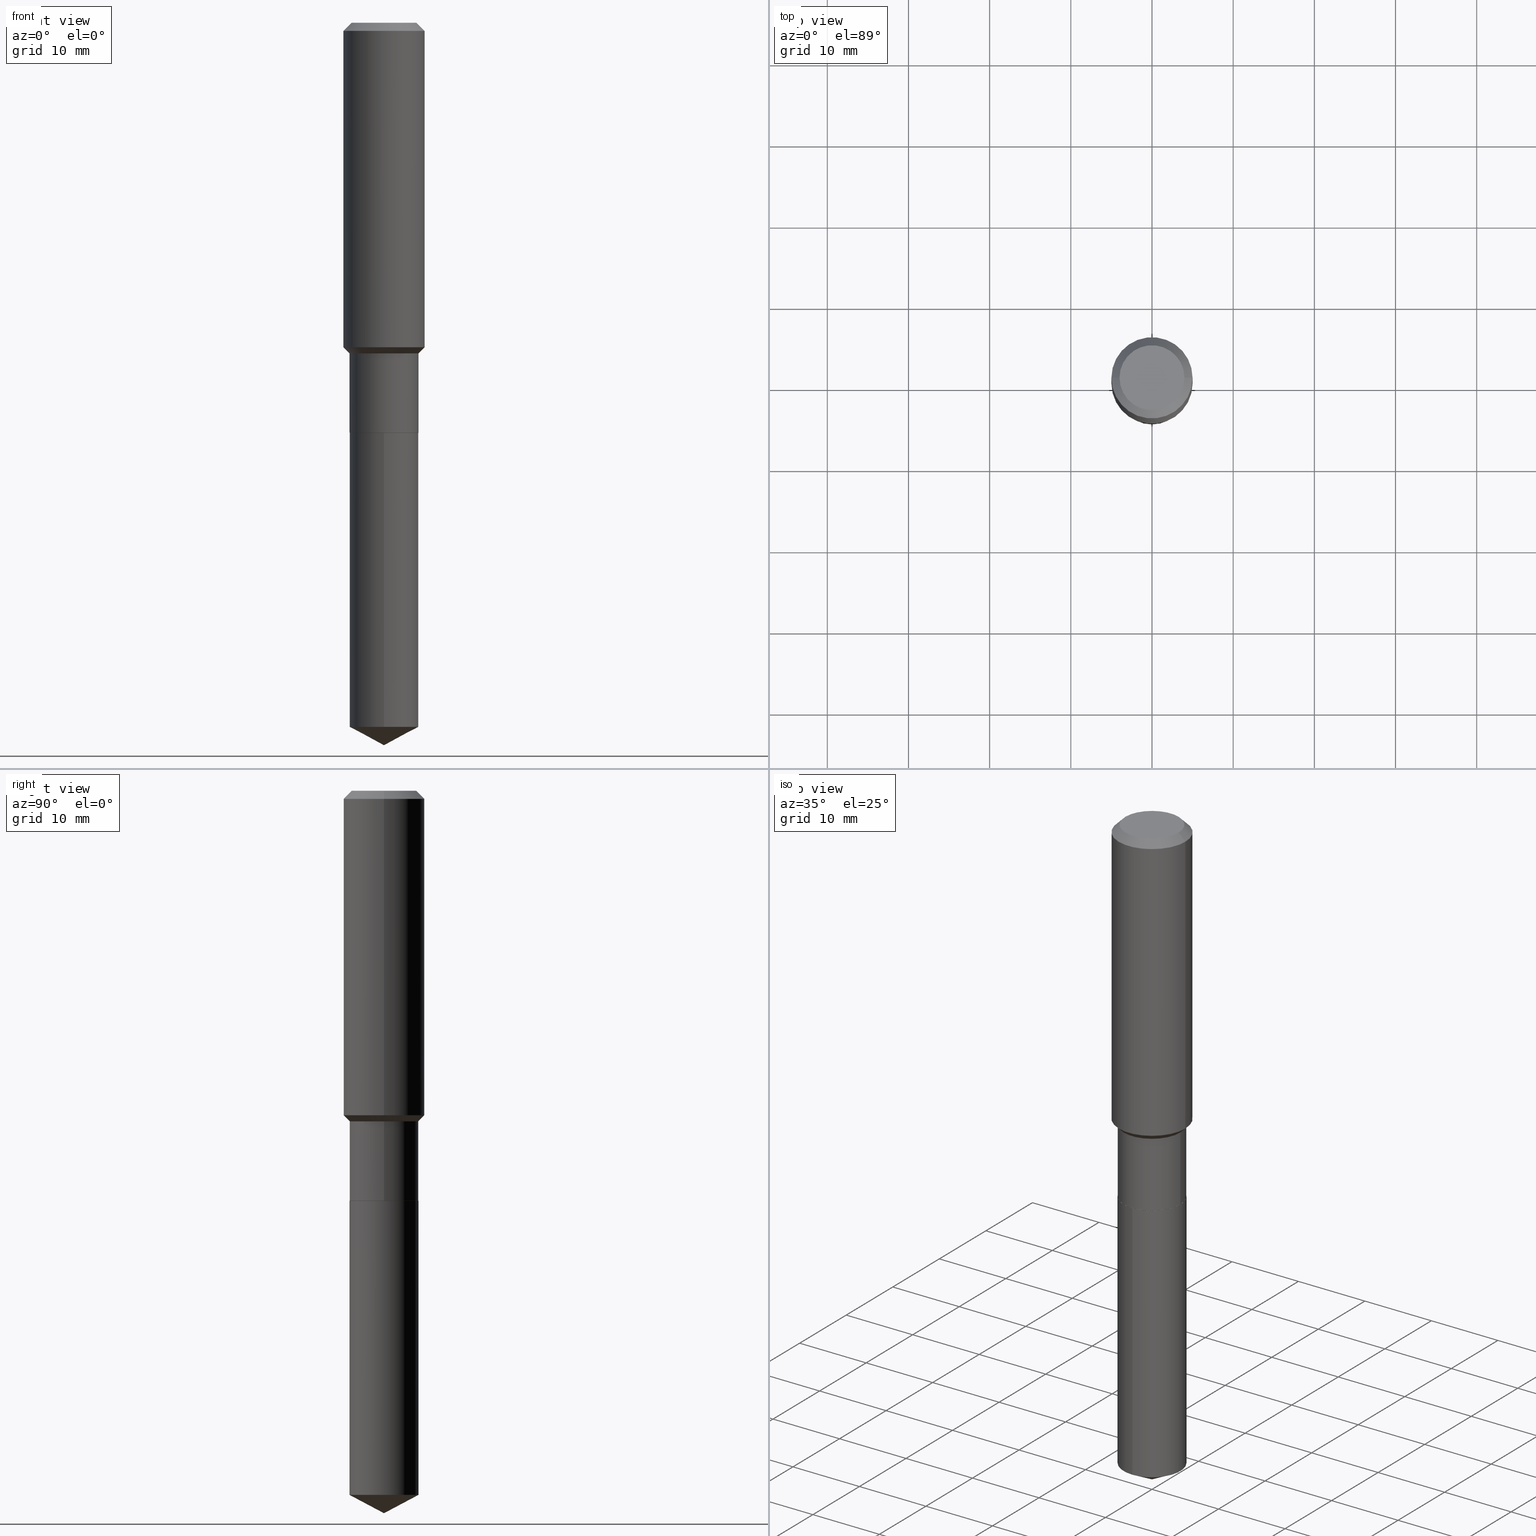
[diagram: canonical four-view strip — front | top / right | iso, engineering-drawing reading convention]
A machine part, canonical four-view strip (front | top / right | iso — engineering-drawing reading convention). The complete STEP part file that produces these views, byte-faithful:
ISO-10303-21;
HEADER;
FILE_DESCRIPTION (( 'STEP AP203' ),
    '1' );
FILE_NAME ('67655.STEP',
    '2024-04-25T08:28:06',
    ( '' ),
    ( '' ),
    'SwSTEP 2.0',
    'SolidWorks 2023',
    '' );
FILE_SCHEMA (( 'CONFIG_CONTROL_DESIGN' ));
ENDSEC;

DATA;
#1 = CARTESIAN_POINT ( 'NONE',  ( 3.920820136956629027E-29, -5.597892030567214225E-15, -1.603299999999999725 ) ) ;
#2 = CARTESIAN_POINT ( 'NONE',  ( -0.1673000000000000043, 1.188737996926647641E-15, -8.229378405996457551E-30 ) ) ;
#3 = VECTOR ( 'NONE', #41, 39.37007874015748143 ) ;
#4 = CIRCLE ( 'NONE', #347, 0.1668000000000000038 ) ;
#5 = ADVANCED_FACE ( 'NONE', ( #128 ), #356, .F. ) ;
#6 = DIRECTION ( 'NONE',  ( -2.445468806185136877E-29, 3.491481338843145188E-15, 1.000000000000000000 ) ) ;
#7 = ORIENTED_EDGE ( 'NONE', *, *, #362, .F. ) ;
#8 = FACE_OUTER_BOUND ( 'NONE', #237, .T. ) ;
#9 = FACE_OUTER_BOUND ( 'NONE', #263, .T. ) ;
#10 = CARTESIAN_POINT ( 'NONE',  ( -0.1672999999999999765, -5.080042172899276832E-15, -1.603299999999999725 ) ) ;
#11 = ORIENTED_EDGE ( 'NONE', *, *, #72, .F. ) ;
#12 = CARTESIAN_POINT ( 'NONE',  ( 0.000000000000000000, 0.000000000000000000, 0.000000000000000000 ) ) ;
#13 = DIRECTION ( 'NONE',  ( -0.7071067811864267805, 7.493145998869918709E-15, 0.7071067811866682540 ) ) ;
#14 = ORIENTED_EDGE ( 'NONE', *, *, #283, .F. ) ;
#15 = DIRECTION ( 'NONE',  ( 0.7071067811864267805, -2.468850131080992517E-15, 0.7071067811866682540 ) ) ;
#16 = ADVANCED_FACE ( 'NONE', ( #414 ), #76, .T. ) ;
#17 = DIRECTION ( 'NONE',  ( -2.445468806185136597E-29, 3.491481338843145583E-15, 1.000000000000000000 ) ) ;
#18 = CONICAL_SURFACE ( 'NONE', #463, 74.04434902938348273, 1.082104136236486269 ) ;
#19 = PERSON_AND_ORGANIZATION ( #438, #258 ) ;
#20 = CONICAL_SURFACE ( 'NONE', #332, 74.04434902938348273, 1.082104136236486269 ) ;
#21 = PRODUCT_DEFINITION_FORMATION_WITH_SPECIFIED_SOURCE ( 'ANY', '', #469, .NOT_KNOWN. ) ;
#22 = CARTESIAN_POINT ( 'NONE',  ( 1.188737996926731261E-15, 0.1672999999999881249, -3.414945012083035358 ) ) ;
#23 = PERSON_AND_ORGANIZATION ( #438, #258 ) ;
#24 =( LENGTH_UNIT ( ) NAMED_UNIT ( * ) SI_UNIT ( $, .METRE. ) );
#25 = PRODUCT_DEFINITION_SHAPE ( 'NONE', 'NONE',  #112 ) ;
#26 = APPROVAL ( #330, 'UNSPECIFIED' ) ;
#27 = VECTOR ( 'NONE', #440, 39.37007874015748854 ) ;
#28 = VECTOR ( 'NONE', #6, 39.37007874015748143 ) ;
#29 = CARTESIAN_POINT ( 'NONE',  ( -0.1673000000000000043, -5.080042172899276832E-15, -1.987599999999999811 ) ) ;
#30 = APPROVAL_ROLE ( '' ) ;
#31 = CONICAL_SURFACE ( 'NONE', #148, 0.1968500000000000250, 0.7853981633974449483 ) ;
#32 = ADVANCED_FACE ( 'NONE', ( #9 ), #422, .T. ) ;
#33 = CC_DESIGN_PERSON_AND_ORGANIZATION_ASSIGNMENT ( #67, #214, ( #21 ) ) ;
#34 = ORIENTED_EDGE ( 'NONE', *, *, #362, .T. ) ;
#35 = LOCAL_TIME ( 4, 28, 6.000000000000000000, #293 ) ;
#36 = PLANE ( 'NONE',  #261 ) ;
#37 = ORIENTED_EDGE ( 'NONE', *, *, #471, .F. ) ;
#38 = CARTESIAN_POINT ( 'NONE',  ( 0.1968500000000001082, -1.374596203102542397E-15, 9.598753983154305062E-30 ) ) ;
#39 = VERTEX_POINT ( 'NONE', #466 ) ;
#40 = CARTESIAN_POINT ( 'NONE',  ( 3.848556533733857239E-29, -5.494718757004399025E-15, -1.573749999999999538 ) ) ;
#41 = DIRECTION ( 'NONE',  ( -2.445468806185136877E-29, 3.491481338843145188E-15, 1.000000000000000000 ) ) ;
#42 = DIRECTION ( 'NONE',  ( 1.000000000000000000, -6.982962677686265922E-15, 4.876223630392693006E-29 ) ) ;
#43 = ORIENTED_EDGE ( 'NONE', *, *, #146, .T. ) ;
#44 = DIRECTION ( 'NONE',  ( -2.445468806185136597E-29, 3.491481338843145583E-15, 1.000000000000000000 ) ) ;
#45 = ORIENTED_EDGE ( 'NONE', *, *, #244, .T. ) ;
#46 = APPROVAL_DATE_TIME ( #58, #203 ) ;
#47 = CONICAL_SURFACE ( 'NONE', #328, 0.1668000000000000038, 0.7853981633972775267 ) ;
#48 = AXIS2_PLACEMENT_3D ( 'NONE', #360, #271, #315 ) ;
#49 = CARTESIAN_POINT ( 'NONE',  ( -9.427742298522567634E-47, 1.346031739168368355E-32, 3.855188123715870730E-18 ) ) ;
#50 = ORIENTED_EDGE ( 'NONE', *, *, #156, .F. ) ;
#51 = DIRECTION ( 'NONE',  ( 1.000000000000000000, -6.982962677686265133E-15, 0.000000000000000000 ) ) ;
#52 = VERTEX_POINT ( 'NONE', #175 ) ;
#53 = CARTESIAN_POINT ( 'NONE',  ( 4.861836533576669787E-29, -6.941414049754057014E-15, -1.988099999999999756 ) ) ;
#54 = ORIENTED_EDGE ( 'NONE', *, *, #471, .T. ) ;
#55 = CALENDAR_DATE ( 2024, 25, 4 ) ;
#56 = ORIENTED_EDGE ( 'NONE', *, *, #160, .F. ) ;
#57 = CARTESIAN_POINT ( 'NONE',  ( 4.861836533576670348E-29, -6.941414049754057803E-15, -1.988099999999999978 ) ) ;
#58 = DATE_AND_TIME ( #391, #410 ) ;
#59 = CLOSED_SHELL ( 'NONE', ( #16, #327, #292, #86, #187, #63, #334, #359, #379, #364, #297, #116 ) ) ;
#60 = PERSON_AND_ORGANIZATION_ROLE ( 'creator' ) ;
#61 = AXIS2_PLACEMENT_3D ( 'NONE', #130, #339, #139 ) ;
#62 = CARTESIAN_POINT ( 'NONE',  ( 0.000000000000000000, 0.000000000000000000, 0.000000000000000000 ) ) ;
#63 = ADVANCED_FACE ( 'NONE', ( #207 ), #374, .T. ) ;
#64 = EDGE_CURVE ( 'NONE', #134, #480, #350, .T. ) ;
#65 = CALENDAR_DATE ( 2024, 25, 4 ) ;
#66 = EDGE_CURVE ( 'NONE', #309, #134, #104, .T. ) ;
#67 = PERSON_AND_ORGANIZATION ( #438, #258 ) ;
#68 = VECTOR ( 'NONE', #370, 39.37007874015748143 ) ;
#69 = FACE_OUTER_BOUND ( 'NONE', #407, .T. ) ;
#70 = CC_DESIGN_SECURITY_CLASSIFICATION ( #218, ( #21 ) ) ;
#71 = UNCERTAINTY_MEASURE_WITH_UNIT (LENGTH_MEASURE( 1.000000000000000082E-05 ), #181, 'distance_accuracy_value', 'NONE');
#72 = EDGE_CURVE ( 'NONE', #134, #309, #290, .T. ) ;
#73 = LINE ( 'NONE', #363, #185 ) ;
#74 = VERTEX_POINT ( 'NONE', #22 ) ;
#75 = EDGE_CURVE ( 'NONE', #299, #52, #147, .T. ) ;
#76 = CONICAL_SURFACE ( 'NONE', #482, 0.1668000000000000038, 0.7853981633972775267 ) ;
#77 = CONICAL_SURFACE ( 'NONE', #199, 0.1672999999999999765, 0.7853981633974482790 ) ;
#78 = CC_DESIGN_DATE_AND_TIME_ASSIGNMENT ( #467, #437, ( #112 ) ) ;
#79 = FACE_OUTER_BOUND ( 'NONE', #316, .T. ) ;
#80 = CARTESIAN_POINT ( 'NONE',  ( -0.1968500000000000250, 1.237136582792286225E-15, -0.03937000000000027283 ) ) ;
#81 = AXIS2_PLACEMENT_3D ( 'NONE', #40, #44, #250 ) ;
#82 = VECTOR ( 'NONE', #119, 39.37007874015748143 ) ;
#83 = LINE ( 'NONE', #266, #268 ) ;
#84 = ORIENTED_EDGE ( 'NONE', *, *, #156, .T. ) ;
#85 = DIRECTION ( 'NONE',  ( -6.982962677686266711E-15, -1.000000000000000000, 3.265807523806650431E-15 ) ) ;
#86 = ADVANCED_FACE ( 'NONE', ( #135 ), #241, .T. ) ;
#87 = FACE_OUTER_BOUND ( 'NONE', #354, .T. ) ;
#88 = LINE ( 'NONE', #38, #82 ) ;
#89 = EDGE_LOOP ( 'NONE', ( #428, #352, #267, #100 ) ) ;
#90 = DIRECTION ( 'NONE',  ( -6.982962677686268288E-15, -1.000000000000000000, 3.541896320645563630E-15 ) ) ;
#91 = DIRECTION ( 'NONE',  ( 1.000000000000000000, -6.982962677686265922E-15, 0.000000000000000000 ) ) ;
#92 = DIRECTION ( 'NONE',  ( -2.445468806185136597E-29, 3.491481338843145583E-15, 1.000000000000000000 ) ) ;
#93 = CARTESIAN_POINT ( 'NONE',  ( 8.568846192446895869E-29, -1.223356318784113477E-14, -3.503899999999999793 ) ) ;
#94 = AXIS2_PLACEMENT_3D ( 'NONE', #1, #174, #127 ) ;
#95 = DIRECTION ( 'NONE',  ( -2.445468806185136597E-29, 3.491481338843145583E-15, 1.000000000000000000 ) ) ;
#96 = ORIENTED_EDGE ( 'NONE', *, *, #225, .F. ) ;
#97 = MANIFOLD_SOLID_BREP ( 'Body-Move/Copy2[2]', #59 ) ;
#98 = ORIENTED_EDGE ( 'NONE', *, *, #64, .F. ) ;
#99 = CALENDAR_DATE ( 2024, 25, 4 ) ;
#100 = ORIENTED_EDGE ( 'NONE', *, *, #249, .F. ) ;
#101 = LINE ( 'NONE', #450, #367 ) ;
#102 = DIRECTION ( 'NONE',  ( 6.982962677686265922E-15, 1.000000000000000000, -3.491413335951692307E-15 ) ) ;
#103 = DATE_TIME_ROLE ( 'classification_date' ) ;
#104 = CIRCLE ( 'NONE', #434, 0.1673000000000000043 ) ;
#105 = APPROVAL_DATE_TIME ( #287, #26 ) ;
#106 = COORDINATED_UNIVERSAL_TIME_OFFSET ( 5, 0, .BEHIND. ) ;
#107 = CIRCLE ( 'NONE', #361, 0.1574800000000000089 ) ;
#108 = LOCAL_TIME ( 4, 28, 6.000000000000000000, #295 ) ;
#109 = DESIGN_CONTEXT ( 'detailed design', #118, 'design' ) ;
#110 = ORIENTED_EDGE ( 'NONE', *, *, #75, .F. ) ;
#111 = ORIENTED_EDGE ( 'NONE', *, *, #160, .T. ) ;
#112 = PRODUCT_DEFINITION ( 'UNKNOWN', '', #21, #109 ) ;
#113 = CARTESIAN_POINT ( 'NONE',  ( 2.588108950241720842E-29, -1.019752136162691187E-14, -1.988099999999999978 ) ) ;
#114 = VERTEX_POINT ( 'NONE', #455 ) ;
#115 = AXIS2_PLACEMENT_3D ( 'NONE', #161, #170, #141 ) ;
#116 = ADVANCED_FACE ( 'NONE', ( #87 ), #47, .T. ) ;
#117 = VERTEX_POINT ( 'NONE', #377 ) ;
#118 = APPLICATION_CONTEXT ( 'configuration controlled 3d designs of mechanical parts and assemblies' ) ;
#119 = DIRECTION ( 'NONE',  ( -2.445468806185136877E-29, 3.491481338843145188E-15, 1.000000000000000000 ) ) ;
#120 = ORIENTED_EDGE ( 'NONE', *, *, #395, .T. ) ;
#121 = DIRECTION ( 'NONE',  ( -2.445516292350435561E-29, 3.491413335951692307E-15, 1.000000000000000000 ) ) ;
#122 = ORIENTED_EDGE ( 'NONE', *, *, #146, .F. ) ;
#123 = CIRCLE ( 'NONE', #291, 0.1673000000000000043 ) ;
#124 = CYLINDRICAL_SURFACE ( 'NONE', #230, 0.1968500000000001082 ) ;
#125 = ORIENTED_EDGE ( 'NONE', *, *, #318, .T. ) ;
#126 = EDGE_CURVE ( 'NONE', #117, #490, #169, .T. ) ;
#127 = DIRECTION ( 'NONE',  ( 1.000000000000000000, -6.982962677686265133E-15, 0.000000000000000000 ) ) ;
#128 = FACE_OUTER_BOUND ( 'NONE', #229, .T. ) ;
#129 = DIRECTION ( 'NONE',  ( 2.438088387897960049E-29, -3.491481338843145188E-15, -1.000000000000000000 ) ) ;
#130 = CARTESIAN_POINT ( 'NONE',  ( 9.627810689950950651E-31, -1.374596203102555808E-16, -0.03937000000000027283 ) ) ;
#131 = ADVANCED_FACE ( 'NONE', ( #69 ), #18, .T. ) ;
#132 = ORIENTED_EDGE ( 'NONE', *, *, #402, .F. ) ;
#133 = FACE_OUTER_BOUND ( 'NONE', #220, .T. ) ;
#134 = VERTEX_POINT ( 'NONE', #29 ) ;
#135 = FACE_OUTER_BOUND ( 'NONE', #333, .T. ) ;
#136 = CLOSED_SHELL ( 'NONE', ( #32, #131, #186, #234, #5 ) ) ;
#137 = CONICAL_SURFACE ( 'NONE', #329, 0.1968500000000000250, 0.7853981633974449483 ) ;
#138 = APPLICATION_PROTOCOL_DEFINITION ( 'international standard', 'config_control_design', 1994, #314 ) ;
#139 = DIRECTION ( 'NONE',  ( 1.000000000000000000, -6.982962677686265922E-15, 0.000000000000000000 ) ) ;
#140 = DIRECTION ( 'NONE',  ( -2.445468806185136597E-29, 3.491481338843145583E-15, 1.000000000000000000 ) ) ;
#141 = DIRECTION ( 'NONE',  ( -6.982962677686266711E-15, -1.000000000000000000, 3.265807523806650431E-15 ) ) ;
#142 = VERTEX_POINT ( 'NONE', #465 ) ;
#143 = DIRECTION ( 'NONE',  ( -2.445516292350435841E-29, 3.491413335951692307E-15, 1.000000000000000000 ) ) ;
#144 = PERSON_AND_ORGANIZATION_ROLE ( 'design_owner' ) ;
#145 = PERSON_AND_ORGANIZATION_ROLE ( 'classification_officer' ) ;
#146 = EDGE_CURVE ( 'NONE', #190, #39, #177, .T. ) ;
#147 = CIRCLE ( 'NONE', #368, 0.1968500000000000250 ) ;
#148 = AXIS2_PLACEMENT_3D ( 'NONE', #265, #452, #411 ) ;
#149 = ORIENTED_EDGE ( 'NONE', *, *, #340, .T. ) ;
#150 = CYLINDRICAL_SURFACE ( 'NONE', #472, 0.1968500000000001082 ) ;
#151 = ORIENTED_EDGE ( 'NONE', *, *, #402, .T. ) ;
#152 = EDGE_CURVE ( 'NONE', #74, #142, #101, .T. ) ;
#153 = DIRECTION ( 'NONE',  ( 0.7071067811865451302, -7.319954787623248157E-15, -0.7071067811865499042 ) ) ;
#154 = AXIS2_PLACEMENT_3D ( 'NONE', #113, #226, #219 ) ;
#155 = ORIENTED_EDGE ( 'NONE', *, *, #209, .T. ) ;
#156 = EDGE_CURVE ( 'NONE', #388, #299, #429, .T. ) ;
#157 = DIRECTION ( 'NONE',  ( 1.000000000000000000, -6.982962677686265922E-15, 0.000000000000000000 ) ) ;
#158 = EDGE_LOOP ( 'NONE', ( #348, #284, #416, #301 ) ) ;
#159 = DIRECTION ( 'NONE',  ( -2.445516292350435841E-29, 3.491413335951692307E-15, 1.000000000000000000 ) ) ;
#160 = EDGE_CURVE ( 'NONE', #114, #388, #439, .T. ) ;
#161 = CARTESIAN_POINT ( 'NONE',  ( 8.351209257284685878E-29, -1.192311975327691993E-14, -3.414945012083034914 ) ) ;
#162 = ORIENTED_EDGE ( 'NONE', *, *, #366, .F. ) ;
#163 = CARTESIAN_POINT ( 'NONE',  ( 4.861836533576669787E-29, -6.941414049754057014E-15, -1.988099999999999756 ) ) ;
#164 = DIRECTION ( 'NONE',  ( 1.000000000000000000, -6.982962677686269866E-15, 0.000000000000000000 ) ) ;
#165 = VECTOR ( 'NONE', #382, 39.37007874015748854 ) ;
#166 = APPROVAL_ROLE ( '' ) ;
#167 = LINE ( 'NONE', #408, #254 ) ;
#168 = DIRECTION ( 'NONE',  ( -2.445516292350435841E-29, 3.491413335951692307E-15, 1.000000000000000000 ) ) ;
#169 = LINE ( 'NONE', #313, #27 ) ;
#170 = DIRECTION ( 'NONE',  ( -2.445516292350435841E-29, 3.491413335951692307E-15, 1.000000000000000000 ) ) ;
#171 = EDGE_LOOP ( 'NONE', ( #208, #34, #460, #484 ) ) ;
#172 = DIRECTION ( 'NONE',  ( 2.445516292350435561E-29, -3.491413335951692307E-15, -1.000000000000000000 ) ) ;
#173 = FACE_OUTER_BOUND ( 'NONE', #281, .T. ) ;
#174 = DIRECTION ( 'NONE',  ( -2.445468806185136597E-29, 3.491481338843145583E-15, 1.000000000000000000 ) ) ;
#175 = CARTESIAN_POINT ( 'NONE',  ( 0.1968500000000000250, -1.512055823412797189E-15, -0.03937000000000027283 ) ) ;
#176 = VECTOR ( 'NONE', #389, 39.37007874015748143 ) ;
#177 = CIRCLE ( 'NONE', #257, 0.1668000000000000038 ) ;
#178 = DATE_AND_TIME ( #65, #445 ) ;
#179 = DIRECTION ( 'NONE',  ( 1.000000000000000000, -6.982962677686265133E-15, 0.000000000000000000 ) ) ;
#180 = CALENDAR_DATE ( 2024, 25, 4 ) ;
#181 =( CONVERSION_BASED_UNIT ( 'INCH', #325 ) LENGTH_UNIT ( ) NAMED_UNIT ( #418 ) );
#182 =( GEOMETRIC_REPRESENTATION_CONTEXT ( 3 ) GLOBAL_UNCERTAINTY_ASSIGNED_CONTEXT ( ( #71 ) ) GLOBAL_UNIT_ASSIGNED_CONTEXT ( ( #181, #387, #355 ) ) REPRESENTATION_CONTEXT ( 'NONE', 'WORKASPACE' ) );
#183 = APPROVAL_PERSON_ORGANIZATION ( #213, #474, #30 ) ;
#184 = MECHANICAL_CONTEXT ( 'NONE', #314, 'mechanical' ) ;
#185 = VECTOR ( 'NONE', #153, 39.37007874015748143 ) ;
#186 = ADVANCED_FACE ( 'NONE', ( #8 ), #20, .T. ) ;
#187 = ADVANCED_FACE ( 'NONE', ( #269 ), #353, .T. ) ;
#188 = CIRCLE ( 'NONE', #115, 0.1673000000000000043 ) ;
#189 = LINE ( 'NONE', #245, #165 ) ;
#190 = VERTEX_POINT ( 'NONE', #240 ) ;
#191 = DIRECTION ( 'NONE',  ( 1.000000000000000000, -6.982962677686265922E-15, 0.000000000000000000 ) ) ;
#192 = LINE ( 'NONE', #341, #404 ) ;
#193 = FACE_OUTER_BOUND ( 'NONE', #89, .T. ) ;
#194 = DIRECTION ( 'NONE',  ( -2.445468806185136597E-29, 3.491481338843145583E-15, 1.000000000000000000 ) ) ;
#195 = ORIENTED_EDGE ( 'NONE', *, *, #340, .F. ) ;
#196 = CC_DESIGN_PERSON_AND_ORGANIZATION_ASSIGNMENT ( #470, #144, ( #469 ) ) ;
#197 = DIRECTION ( 'NONE',  ( -2.445468806185136597E-29, 3.491481338843145583E-15, 1.000000000000000000 ) ) ;
#198 = CARTESIAN_POINT ( 'NONE',  ( 4.861836533576669787E-29, -6.941414049754057014E-15, -1.988099999999999756 ) ) ;
#199 = AXIS2_PLACEMENT_3D ( 'NONE', #345, #95, #51 ) ;
#200 = CC_DESIGN_APPROVAL ( #203, ( #218 ) ) ;
#201 = DIRECTION ( 'NONE',  ( -2.445468806185136597E-29, 3.491481338843145583E-15, 1.000000000000000000 ) ) ;
#202 = DIRECTION ( 'NONE',  ( -2.445468806185136597E-29, 3.491481338843145583E-15, 1.000000000000000000 ) ) ;
#203 = APPROVAL ( #279, 'UNSPECIFIED' ) ;
#204 = DIRECTION ( 'NONE',  ( -2.445468806185136597E-29, 3.491481338843145583E-15, 1.000000000000000000 ) ) ;
#205 = DIRECTION ( 'NONE',  ( -1.000000000000000000, 6.982962677686265922E-15, -4.876176775795935793E-29 ) ) ;
#206 = EDGE_LOOP ( 'NONE', ( #50, #401, #151, #110 ) ) ;
#207 = FACE_OUTER_BOUND ( 'NONE', #486, .T. ) ;
#208 = ORIENTED_EDGE ( 'NONE', *, *, #398, .T. ) ;
#209 = EDGE_CURVE ( 'NONE', #39, #309, #312, .T. ) ;
#210 = DIRECTION ( 'NONE',  ( 1.000000000000000000, -6.982962677686266711E-15, 4.876176775795936353E-29 ) ) ;
#211 = AXIS2_PLACEMENT_3D ( 'NONE', #273, #417, #223 ) ;
#212 = SECURITY_CLASSIFICATION_LEVEL ( 'unclassified' ) ;
#213 = PERSON_AND_ORGANIZATION ( #438, #258 ) ;
#214 = PERSON_AND_ORGANIZATION_ROLE ( 'design_supplier' ) ;
#215 = CARTESIAN_POINT ( 'NONE',  ( -1.168249655976829167E-15, -0.1673000000000119669, -3.414945012083034026 ) ) ;
#216 = CIRCLE ( 'NONE', #94, 0.1672999999999999765 ) ;
#217 = EDGE_CURVE ( 'NONE', #52, #299, #476, .T. ) ;
#218 = SECURITY_CLASSIFICATION ( '', '', #212 ) ;
#219 = DIRECTION ( 'NONE',  ( 1.000000000000000000, -6.982962677686265922E-15, 4.876176775795935793E-29 ) ) ;
#220 = EDGE_LOOP ( 'NONE', ( #125, #346 ) ) ;
#221 = AXIS2_PLACEMENT_3D ( 'NONE', #198, #172, #102 ) ;
#222 = AXIS2_PLACEMENT_3D ( 'NONE', #277, #454, #85 ) ;
#223 = DIRECTION ( 'NONE',  ( -6.982962677686266711E-15, -1.000000000000000000, 3.265807523806650431E-15 ) ) ;
#224 = LOCAL_TIME ( 4, 28, 6.000000000000000000, #252 ) ;
#225 = EDGE_CURVE ( 'NONE', #321, #142, #243, .T. ) ;
#226 = DIRECTION ( 'NONE',  ( -2.438088387897960049E-29, 3.491481338843145188E-15, 1.000000000000000000 ) ) ;
#227 = VERTEX_POINT ( 'NONE', #421 ) ;
#228 = DIRECTION ( 'NONE',  ( 1.000000000000000000, -6.982962677686266711E-15, 4.876176775795935793E-29 ) ) ;
#229 = EDGE_LOOP ( 'NONE', ( #248, #419 ) ) ;
#230 = AXIS2_PLACEMENT_3D ( 'NONE', #351, #231, #228 ) ;
#231 = DIRECTION ( 'NONE',  ( -2.445468806185136597E-29, 3.491481338843145583E-15, 1.000000000000000000 ) ) ;
#232 = DIRECTION ( 'NONE',  ( -6.982962677686266711E-15, -1.000000000000000000, 3.265807523806650431E-15 ) ) ;
#233 = CARTESIAN_POINT ( 'NONE',  ( 4.861836533576670348E-29, -6.941414049754057803E-15, -1.988099999999999978 ) ) ;
#234 = ADVANCED_FACE ( 'NONE', ( #193 ), #285, .T. ) ;
#235 = FACE_OUTER_BOUND ( 'NONE', #259, .T. ) ;
#236 = ORIENTED_EDGE ( 'NONE', *, *, #274, .F. ) ;
#237 = EDGE_LOOP ( 'NONE', ( #464, #376, #272 ) ) ;
#238 = EDGE_CURVE ( 'NONE', #487, #480, #216, .T. ) ;
#239 = DIRECTION ( 'NONE',  ( 1.000000000000000000, -6.982962677686265922E-15, 0.000000000000000000 ) ) ;
#240 = CARTESIAN_POINT ( 'NONE',  ( -0.1668000000000000038, -5.753579539332099070E-15, -1.988099999999999978 ) ) ;
#241 = CONICAL_SURFACE ( 'NONE', #399, 0.1672999999999999765, 0.7853981633974482790 ) ;
#242 = ORIENTED_EDGE ( 'NONE', *, *, #238, .T. ) ;
#243 = CIRCLE ( 'NONE', #222, 0.1673000000000000043 ) ;
#244 = EDGE_CURVE ( 'NONE', #117, #74, #488, .T. ) ;
#245 = CARTESIAN_POINT ( 'NONE',  ( -0.1672999999999999765, -4.409154033640566583E-15, -1.603299999999999725 ) ) ;
#246 = CARTESIAN_POINT ( 'NONE',  ( 4.861836533576670348E-29, -6.941414049754057803E-15, -1.988099999999999978 ) ) ;
#247 = PERSON_AND_ORGANIZATION_ROLE ( 'creator' ) ;
#248 = ORIENTED_EDGE ( 'NONE', *, *, #225, .T. ) ;
#249 = EDGE_CURVE ( 'NONE', #142, #321, #123, .T. ) ;
#250 = DIRECTION ( 'NONE',  ( 1.000000000000000000, -6.982962677686265922E-15, 0.000000000000000000 ) ) ;
#251 = CARTESIAN_POINT ( 'NONE',  ( 4.861836533576669787E-29, -6.941414049754057014E-15, -1.988099999999999756 ) ) ;
#252 = COORDINATED_UNIVERSAL_TIME_OFFSET ( 5, 0, .BEHIND. ) ;
#253 = COORDINATED_UNIVERSAL_TIME_OFFSET ( 5, 0, .BEHIND. ) ;
#254 = VECTOR ( 'NONE', #13, 39.37007874015748143 ) ;
#255 = MANIFOLD_SOLID_BREP ( 'Body-Move/Copy2[1]', #136 ) ;
#256 = CC_DESIGN_PERSON_AND_ORGANIZATION_ASSIGNMENT ( #19, #247, ( #112 ) ) ;
#257 = AXIS2_PLACEMENT_3D ( 'NONE', #246, #202, #191 ) ;
#258 = ORGANIZATION ( 'UNSPECIFIED', 'UNSPECIFIED', '' ) ;
#259 = EDGE_LOOP ( 'NONE', ( #162, #453, #54, #372 ) ) ;
#260 = AXIS2_PLACEMENT_3D ( 'NONE', #270, #140, #164 ) ;
#261 = AXIS2_PLACEMENT_3D ( 'NONE', #378, #129, #205 ) ;
#262 = CARTESIAN_POINT ( 'NONE',  ( 0.000000000000000000, 0.000000000000000000, 0.000000000000000000 ) ) ;
#263 = EDGE_LOOP ( 'NONE', ( #365, #302, #96, #385 ) ) ;
#264 = VERTEX_POINT ( 'NONE', #308 ) ;
#265 = CARTESIAN_POINT ( 'NONE',  ( 9.627810689950950651E-31, -1.374596203102555808E-16, -0.03937000000000027283 ) ) ;
#266 = CARTESIAN_POINT ( 'NONE',  ( 0.1672999999999999765, -6.766141686544126223E-15, -1.603299999999999725 ) ) ;
#267 = ORIENTED_EDGE ( 'NONE', *, *, #436, .T. ) ;
#268 = VECTOR ( 'NONE', #349, 39.37007874015748854 ) ;
#269 = FACE_OUTER_BOUND ( 'NONE', #326, .T. ) ;
#270 = CARTESIAN_POINT ( 'NONE',  ( 4.860613799173576986E-29, -6.939668309084635510E-15, -1.987599999999999811 ) ) ;
#271 = DIRECTION ( 'NONE',  ( -2.445468806185136597E-29, 3.491481338843145583E-15, 1.000000000000000000 ) ) ;
#272 = ORIENTED_EDGE ( 'NONE', *, *, #481, .F. ) ;
#273 = CARTESIAN_POINT ( 'NONE',  ( 8.351209257284685878E-29, -1.192311975327691993E-14, -3.414945012083034914 ) ) ;
#274 = EDGE_CURVE ( 'NONE', #490, #74, #441, .T. ) ;
#275 = DIRECTION ( 'NONE',  ( -2.445468806185136597E-29, 3.491481338843145583E-15, 1.000000000000000000 ) ) ;
#276 = CARTESIAN_POINT ( 'NONE',  ( -0.1968500000000002192, -4.096015381660639660E-15, -1.573749999999999538 ) ) ;
#277 = CARTESIAN_POINT ( 'NONE',  ( 4.861836533576669787E-29, -6.941414049754057014E-15, -1.988099999999999756 ) ) ;
#278 = EDGE_LOOP ( 'NONE', ( #111, #84, #342, #132 ) ) ;
#279 = APPROVAL_STATUS ( 'not_yet_approved' ) ;
#280 = CARTESIAN_POINT ( 'NONE',  ( -9.427742298522567634E-47, 1.346031739168368355E-32, 3.855188123715870730E-18 ) ) ;
#281 = EDGE_LOOP ( 'NONE', ( #14, #424, #120, #412 ) ) ;
#282 = CARTESIAN_POINT ( 'NONE',  ( 3.920820136956629027E-29, -5.597892030567214225E-15, -1.603299999999999725 ) ) ;
#283 = EDGE_CURVE ( 'NONE', #264, #52, #73, .T. ) ;
#284 = ORIENTED_EDGE ( 'NONE', *, *, #283, .T. ) ;
#285 = CYLINDRICAL_SURFACE ( 'NONE', #483, 0.1673000000000000043 ) ;
#286 = DIRECTION ( 'NONE',  ( -2.445468806185136597E-29, 3.491481338843145583E-15, 1.000000000000000000 ) ) ;
#287 = DATE_AND_TIME ( #99, #35 ) ;
#288 = SHAPE_DEFINITION_REPRESENTATION ( #25, #343 ) ;
#289 = ORIENTED_EDGE ( 'NONE', *, *, #64, .T. ) ;
#290 = CIRCLE ( 'NONE', #260, 0.1673000000000000043 ) ;
#291 = AXIS2_PLACEMENT_3D ( 'NONE', #53, #380, #232 ) ;
#292 = ADVANCED_FACE ( 'NONE', ( #478 ), #150, .T. ) ;
#293 = COORDINATED_UNIVERSAL_TIME_OFFSET ( 5, 0, .BEHIND. ) ;
#294 = PRODUCT_RELATED_PRODUCT_CATEGORY ( 'detail', '', ( #469 ) ) ;
#295 = COORDINATED_UNIVERSAL_TIME_OFFSET ( 5, 0, .BEHIND. ) ;
#296 = VECTOR ( 'NONE', #305, 39.37007874015748854 ) ;
#297 = ADVANCED_FACE ( 'NONE', ( #79 ), #298, .F. ) ;
#298 = PLANE ( 'NONE',  #154 ) ;
#299 = VERTEX_POINT ( 'NONE', #405 ) ;
#300 = CC_DESIGN_PERSON_AND_ORGANIZATION_ASSIGNMENT ( #392, #60, ( #21 ) ) ;
#301 = ORIENTED_EDGE ( 'NONE', *, *, #395, .F. ) ;
#302 = ORIENTED_EDGE ( 'NONE', *, *, #152, .T. ) ;
#303 = DIRECTION ( 'NONE',  ( 1.000000000000000000, -6.982962677686265922E-15, 4.876223630392693006E-29 ) ) ;
#304 = ORIENTED_EDGE ( 'NONE', *, *, #238, .F. ) ;
#305 = DIRECTION ( 'NONE',  ( 6.273719981627763710E-15, 0.8829475928589293199, 0.4694715627858859208 ) ) ;
#306 = EDGE_CURVE ( 'NONE', #480, #487, #336, .T. ) ;
#307 = FACE_OUTER_BOUND ( 'NONE', #206, .T. ) ;
#308 = CARTESIAN_POINT ( 'NONE',  ( 0.1574800000000000089, -1.284169937930321189E-15, 3.855188123724205385E-18 ) ) ;
#309 = VERTEX_POINT ( 'NONE', #310 ) ;
#310 = CARTESIAN_POINT ( 'NONE',  ( 0.1673000000000000043, -8.107917965061548297E-15, -1.987599999999999811 ) ) ;
#311 = ORIENTED_EDGE ( 'NONE', *, *, #126, .F. ) ;
#312 = LINE ( 'NONE', #457, #394 ) ;
#313 = CARTESIAN_POINT ( 'NONE',  ( 8.568655722276229560E-29, -1.223383358093813034E-14, -3.503899999999999793 ) ) ;
#314 = APPLICATION_CONTEXT ( 'configuration controlled 3d designs of mechanical parts and assemblies' ) ;
#315 = DIRECTION ( 'NONE',  ( 1.000000000000000000, -6.982962677686265133E-15, 0.000000000000000000 ) ) ;
#316 = EDGE_LOOP ( 'NONE', ( #479, #122 ) ) ;
#317 = CARTESIAN_POINT ( 'NONE',  ( -8.771141886065317356E-28, 1.252235195664644052E-13, 35.86617874015747987 ) ) ;
#318 = EDGE_CURVE ( 'NONE', #227, #264, #107, .T. ) ;
#319 = CARTESIAN_POINT ( 'NONE',  ( 9.627810689950950651E-31, -1.374596203102555808E-16, -0.03937000000000027283 ) ) ;
#320 = FACE_OUTER_BOUND ( 'NONE', #158, .T. ) ;
#321 = VERTEX_POINT ( 'NONE', #371 ) ;
#322 = CARTESIAN_POINT ( 'NONE',  ( 0.000000000000000000, 0.000000000000000000, 0.000000000000000000 ) ) ;
#323 = AXIS2_PLACEMENT_3D ( 'NONE', #49, #201, #303 ) ;
#324 = CC_DESIGN_PERSON_AND_ORGANIZATION_ASSIGNMENT ( #475, #145, ( #218 ) ) ;
#325 = LENGTH_MEASURE_WITH_UNIT ( LENGTH_MEASURE( 0.02539999999999999897 ), #24 );
#326 = EDGE_LOOP ( 'NONE', ( #446, #289, #304, #195 ) ) ;
#327 = ADVANCED_FACE ( 'NONE', ( #320 ), #137, .T. ) ;
#328 = AXIS2_PLACEMENT_3D ( 'NONE', #233, #194, #91 ) ;
#329 = AXIS2_PLACEMENT_3D ( 'NONE', #456, #415, #459 ) ;
#330 = APPROVAL_STATUS ( 'not_yet_approved' ) ;
#331 = EDGE_CURVE ( 'NONE', #388, #114, #369, .T. ) ;
#332 = AXIS2_PLACEMENT_3D ( 'NONE', #317, #168, #90 ) ;
#333 = EDGE_LOOP ( 'NONE', ( #242, #338, #56, #37 ) ) ;
#334 = ADVANCED_FACE ( 'NONE', ( #235 ), #77, .T. ) ;
#335 = ORIENTED_EDGE ( 'NONE', *, *, #306, .F. ) ;
#336 = CIRCLE ( 'NONE', #48, 0.1672999999999999765 ) ;
#337 = DIRECTION ( 'NONE',  ( -2.445468806185136597E-29, 3.491481338843145583E-15, 1.000000000000000000 ) ) ;
#338 = ORIENTED_EDGE ( 'NONE', *, *, #366, .T. ) ;
#339 = DIRECTION ( 'NONE',  ( -2.445468806185136597E-29, 3.491481338843145583E-15, 1.000000000000000000 ) ) ;
#340 = EDGE_CURVE ( 'NONE', #309, #487, #485, .T. ) ;
#341 = CARTESIAN_POINT ( 'NONE',  ( -1.168249655976863877E-15, -0.1673000000000069432, -1.988099999999999312 ) ) ;
#342 = ORIENTED_EDGE ( 'NONE', *, *, #217, .F. ) ;
#343 = ADVANCED_BREP_SHAPE_REPRESENTATION ( '67655', ( #255, #97, #425 ), #182 ) ;
#344 = DIRECTION ( 'NONE',  ( 1.000000000000000000, -6.982962677686265922E-15, 0.000000000000000000 ) ) ;
#345 = CARTESIAN_POINT ( 'NONE',  ( 3.920820136956629027E-29, -5.597892030567214225E-15, -1.603299999999999725 ) ) ;
#346 = ORIENTED_EDGE ( 'NONE', *, *, #447, .T. ) ;
#347 = AXIS2_PLACEMENT_3D ( 'NONE', #448, #337, #239 ) ;
#348 = ORIENTED_EDGE ( 'NONE', *, *, #447, .F. ) ;
#349 = DIRECTION ( 'NONE',  ( 0.7071067811865474617, -2.468850131082256666E-15, 0.7071067811865474617 ) ) ;
#350 = LINE ( 'NONE', #2, #3 ) ;
#351 = CARTESIAN_POINT ( 'NONE',  ( 0.000000000000000000, 0.000000000000000000, 0.000000000000000000 ) ) ;
#352 = ORIENTED_EDGE ( 'NONE', *, *, #481, .T. ) ;
#353 = CYLINDRICAL_SURFACE ( 'NONE', #409, 0.1673000000000000043 ) ;
#354 = EDGE_LOOP ( 'NONE', ( #7, #43, #155, #11 ) ) ;
#355 =( NAMED_UNIT ( * ) SI_UNIT ( $, .STERADIAN. ) SOLID_ANGLE_UNIT ( ) );
#356 = PLANE ( 'NONE',  #221 ) ;
#357 = DIRECTION ( 'NONE',  ( 1.000000000000000000, 0.000000000000000000, 0.000000000000000000 ) ) ;
#358 = DIRECTION ( 'NONE',  ( -6.982962677686268288E-15, -1.000000000000000000, 3.541896320645563630E-15 ) ) ;
#359 = ADVANCED_FACE ( 'NONE', ( #307 ), #124, .T. ) ;
#360 = CARTESIAN_POINT ( 'NONE',  ( 3.920820136956629027E-29, -5.597892030567214225E-15, -1.603299999999999725 ) ) ;
#361 = AXIS2_PLACEMENT_3D ( 'NONE', #280, #92, #42 ) ;
#362 = EDGE_CURVE ( 'NONE', #190, #134, #167, .T. ) ;
#363 = CARTESIAN_POINT ( 'NONE',  ( 0.1968500000000000250, -1.487948651171581601E-15, -0.03937000000000027283 ) ) ;
#364 = ADVANCED_FACE ( 'NONE', ( #133 ), #36, .F. ) ;
#365 = ORIENTED_EDGE ( 'NONE', *, *, #274, .T. ) ;
#366 = EDGE_CURVE ( 'NONE', #480, #388, #189, .T. ) ;
#367 = VECTOR ( 'NONE', #121, 39.37007874015748143 ) ;
#368 = AXIS2_PLACEMENT_3D ( 'NONE', #319, #461, #430 ) ;
#369 = CIRCLE ( 'NONE', #451, 0.1968500000000002192 ) ;
#370 = DIRECTION ( 'NONE',  ( -0.7071067811865451302, 2.468850131082231817E-15, -0.7071067811865499042 ) ) ;
#371 = CARTESIAN_POINT ( 'NONE',  ( -1.168249655976863877E-15, -0.1673000000000069432, -1.988099999999999312 ) ) ;
#372 = ORIENTED_EDGE ( 'NONE', *, *, #331, .F. ) ;
#373 = CARTESIAN_POINT ( 'NONE',  ( -0.1968500000000001082, 1.398703375343757985E-15, -9.682923725166787881E-30 ) ) ;
#374 = CYLINDRICAL_SURFACE ( 'NONE', #403, 0.1673000000000000043 ) ;
#375 = CARTESIAN_POINT ( 'NONE',  ( 3.848556533733857239E-29, -5.494718757004399025E-15, -1.573749999999999538 ) ) ;
#376 = ORIENTED_EDGE ( 'NONE', *, *, #126, .T. ) ;
#377 = CARTESIAN_POINT ( 'NONE',  ( 8.568844536766692302E-29, -1.223356318784113477E-14, -3.503899999999999793 ) ) ;
#378 = CARTESIAN_POINT ( 'NONE',  ( -4.713871149261283817E-47, 6.730158695841841775E-33, 1.927594061857935365E-18 ) ) ;
#379 = ADVANCED_FACE ( 'NONE', ( #173 ), #31, .T. ) ;
#380 = DIRECTION ( 'NONE',  ( -2.445516292350435841E-29, 3.491413335951692307E-15, 1.000000000000000000 ) ) ;
#381 = DIRECTION ( 'NONE',  ( -2.445516292350435841E-29, 3.491413335951692307E-15, 1.000000000000000000 ) ) ;
#382 = DIRECTION ( 'NONE',  ( -0.7071067811865474617, 7.493145998870352582E-15, 0.7071067811865474617 ) ) ;
#383 = DIRECTION ( 'NONE',  ( 1.000000000000000000, -6.982962677686266711E-15, 4.876176775795936353E-29 ) ) ;
#384 = CC_DESIGN_DATE_AND_TIME_ASSIGNMENT ( #386, #103, ( #218 ) ) ;
#385 = ORIENTED_EDGE ( 'NONE', *, *, #436, .F. ) ;
#386 = DATE_AND_TIME ( #180, #108 ) ;
#387 =( NAMED_UNIT ( * ) PLANE_ANGLE_UNIT ( ) SI_UNIT ( $, .RADIAN. ) );
#388 = VERTEX_POINT ( 'NONE', #276 ) ;
#389 = DIRECTION ( 'NONE',  ( -2.445468806185136877E-29, 3.491481338843145188E-15, 1.000000000000000000 ) ) ;
#390 = DIRECTION ( 'NONE',  ( 1.000000000000000000, -6.982962677686269866E-15, 0.000000000000000000 ) ) ;
#391 = CALENDAR_DATE ( 2024, 25, 4 ) ;
#392 = PERSON_AND_ORGANIZATION ( #438, #258 ) ;
#393 = AXIS2_PLACEMENT_3D ( 'NONE', #251, #381, #458 ) ;
#394 = VECTOR ( 'NONE', #15, 39.37007874015748143 ) ;
#395 = EDGE_CURVE ( 'NONE', #227, #299, #420, .T. ) ;
#396 = CARTESIAN_POINT ( 'NONE',  ( -8.771141886065317356E-28, 1.252235195664644052E-13, 35.86617874015747987 ) ) ;
#397 = APPROVAL_ROLE ( '' ) ;
#398 = EDGE_CURVE ( 'NONE', #39, #190, #4, .T. ) ;
#399 = AXIS2_PLACEMENT_3D ( 'NONE', #282, #286, #179 ) ;
#400 = CIRCLE ( 'NONE', #323, 0.1574800000000000089 ) ;
#401 = ORIENTED_EDGE ( 'NONE', *, *, #331, .T. ) ;
#402 = EDGE_CURVE ( 'NONE', #114, #52, #88, .T. ) ;
#403 = AXIS2_PLACEMENT_3D ( 'NONE', #322, #204, #210 ) ;
#404 = VECTOR ( 'NONE', #489, 39.37007874015748143 ) ;
#405 = CARTESIAN_POINT ( 'NONE',  ( -0.1968500000000000250, -1.417385813313568924E-15, -0.03937000000000027283 ) ) ;
#406 = DIRECTION ( 'NONE',  ( 1.000000000000000000, -6.982962677686266711E-15, 4.876176775795935793E-29 ) ) ;
#407 = EDGE_LOOP ( 'NONE', ( #311, #45, #236 ) ) ;
#408 = CARTESIAN_POINT ( 'NONE',  ( -0.1668000000000000038, -5.756228766506211060E-15, -1.988099999999999978 ) ) ;
#409 = AXIS2_PLACEMENT_3D ( 'NONE', #12, #197, #383 ) ;
#410 = LOCAL_TIME ( 4, 28, 6.000000000000000000, #253 ) ;
#411 = DIRECTION ( 'NONE',  ( -1.000000000000000000, 6.982962677686265922E-15, 0.000000000000000000 ) ) ;
#412 = ORIENTED_EDGE ( 'NONE', *, *, #75, .T. ) ;
#413 = DIRECTION ( 'NONE',  ( -6.982962677686266711E-15, -1.000000000000000000, 3.265807523806650431E-15 ) ) ;
#414 = FACE_OUTER_BOUND ( 'NONE', #171, .T. ) ;
#415 = DIRECTION ( 'NONE',  ( 2.445468806185136597E-29, -3.491481338843145583E-15, -1.000000000000000000 ) ) ;
#416 = ORIENTED_EDGE ( 'NONE', *, *, #217, .T. ) ;
#417 = DIRECTION ( 'NONE',  ( -2.445516292350435841E-29, 3.491413335951692307E-15, 1.000000000000000000 ) ) ;
#418 = DIMENSIONAL_EXPONENTS ( 1.000000000000000000, 0.000000000000000000, 0.000000000000000000, 0.000000000000000000, 0.000000000000000000, 0.000000000000000000, 0.000000000000000000 ) ;
#419 = ORIENTED_EDGE ( 'NONE', *, *, #249, .T. ) ;
#420 = LINE ( 'NONE', #80, #68 ) ;
#421 = CARTESIAN_POINT ( 'NONE',  ( -0.1574800000000000089, 1.168406772637159618E-15, 3.855188123707939751E-18 ) ) ;
#422 = CYLINDRICAL_SURFACE ( 'NONE', #393, 0.1673000000000000043 ) ;
#423 = CARTESIAN_POINT ( 'NONE',  ( 0.1673000000000000043, -1.168249655976912392E-15, 8.157843745906601613E-30 ) ) ;
#424 = ORIENTED_EDGE ( 'NONE', *, *, #318, .F. ) ;
#425 = AXIS2_PLACEMENT_3D ( 'NONE', #62, #468, #357 ) ;
#426 = CARTESIAN_POINT ( 'NONE',  ( 4.860613799173576986E-29, -6.939668309084635510E-15, -1.987599999999999811 ) ) ;
#427 = APPLICATION_PROTOCOL_DEFINITION ( 'international standard', 'config_control_design', 1994, #118 ) ;
#428 = ORIENTED_EDGE ( 'NONE', *, *, #152, .F. ) ;
#429 = LINE ( 'NONE', #373, #176 ) ;
#430 = DIRECTION ( 'NONE',  ( 1.000000000000000000, -6.982962677686265922E-15, 0.000000000000000000 ) ) ;
#431 = PERSON_AND_ORGANIZATION ( #438, #258 ) ;
#432 = APPROVAL_DATE_TIME ( #178, #474 ) ;
#433 = CARTESIAN_POINT ( 'NONE',  ( 0.1672999999999999765, -6.766141686544126223E-15, -1.603299999999999725 ) ) ;
#434 = AXIS2_PLACEMENT_3D ( 'NONE', #426, #275, #390 ) ;
#435 = APPROVAL_STATUS ( 'not_yet_approved' ) ;
#436 = EDGE_CURVE ( 'NONE', #490, #321, #192, .T. ) ;
#437 = DATE_TIME_ROLE ( 'creation_date' ) ;
#438 = PERSON ( 'UNSPECIFIED', 'UNSPECIFIED', 'UNSPECIFIED', ('UNSPECIFIED'), ('UNSPECIFIED'), ('UNSPECIFIED') ) ;
#439 = CIRCLE ( 'NONE', #81, 0.1968500000000002192 ) ;
#440 = DIRECTION ( 'NONE',  ( -6.165590087286832874E-15, -0.8829475928589261002, 0.4694715627858920826 ) ) ;
#441 = CIRCLE ( 'NONE', #211, 0.1673000000000000043 ) ;
#442 = CC_DESIGN_APPROVAL ( #26, ( #112 ) ) ;
#443 = DIRECTION ( 'NONE',  ( -2.445468806185136597E-29, 3.491481338843145583E-15, 1.000000000000000000 ) ) ;
#444 = APPROVAL_PERSON_ORGANIZATION ( #23, #26, #397 ) ;
#445 = LOCAL_TIME ( 4, 28, 6.000000000000000000, #106 ) ;
#446 = ORIENTED_EDGE ( 'NONE', *, *, #66, .T. ) ;
#447 = EDGE_CURVE ( 'NONE', #264, #227, #400, .T. ) ;
#448 = CARTESIAN_POINT ( 'NONE',  ( 4.861836533576670348E-29, -6.941414049754057803E-15, -1.988099999999999978 ) ) ;
#449 = ORIENTED_EDGE ( 'NONE', *, *, #72, .T. ) ;
#450 = CARTESIAN_POINT ( 'NONE',  ( 1.188737996926695959E-15, 0.1672999999999930931, -1.988100000000000200 ) ) ;
#451 = AXIS2_PLACEMENT_3D ( 'NONE', #375, #462, #157 ) ;
#452 = DIRECTION ( 'NONE',  ( 2.445468806185136597E-29, -3.491481338843145583E-15, -1.000000000000000000 ) ) ;
#453 = ORIENTED_EDGE ( 'NONE', *, *, #306, .T. ) ;
#454 = DIRECTION ( 'NONE',  ( -2.445516292350435841E-29, 3.491413335951692307E-15, 1.000000000000000000 ) ) ;
#455 = CARTESIAN_POINT ( 'NONE',  ( 0.1968500000000002192, -6.869314960106940633E-15, -1.573749999999999538 ) ) ;
#456 = CARTESIAN_POINT ( 'NONE',  ( 9.627810689950950651E-31, -1.374596203102555808E-16, -0.03937000000000027283 ) ) ;
#457 = CARTESIAN_POINT ( 'NONE',  ( 0.1668000000000000038, -8.106172224392127582E-15, -1.988099999999999978 ) ) ;
#458 = DIRECTION ( 'NONE',  ( -6.982962677686266711E-15, -1.000000000000000000, 3.265807523806650431E-15 ) ) ;
#459 = DIRECTION ( 'NONE',  ( -1.000000000000000000, 6.982962677686265922E-15, 0.000000000000000000 ) ) ;
#460 = ORIENTED_EDGE ( 'NONE', *, *, #66, .F. ) ;
#461 = DIRECTION ( 'NONE',  ( -2.445468806185136597E-29, 3.491481338843145583E-15, 1.000000000000000000 ) ) ;
#462 = DIRECTION ( 'NONE',  ( -2.445468806185136597E-29, 3.491481338843145583E-15, 1.000000000000000000 ) ) ;
#463 = AXIS2_PLACEMENT_3D ( 'NONE', #396, #143, #358 ) ;
#464 = ORIENTED_EDGE ( 'NONE', *, *, #244, .F. ) ;
#465 = CARTESIAN_POINT ( 'NONE',  ( 1.188737996926731261E-15, 0.1672999999999930931, -1.988100000000000200 ) ) ;
#466 = CARTESIAN_POINT ( 'NONE',  ( 0.1668000000000000038, -8.106172224392127582E-15, -1.988099999999999978 ) ) ;
#467 = DATE_AND_TIME ( #55, #224 ) ;
#468 = DIRECTION ( 'NONE',  ( 0.000000000000000000, 0.000000000000000000, 1.000000000000000000 ) ) ;
#469 = PRODUCT ( '67655', '67655', '', ( #184 ) ) ;
#470 = PERSON_AND_ORGANIZATION ( #438, #258 ) ;
#471 = EDGE_CURVE ( 'NONE', #487, #114, #83, .T. ) ;
#472 = AXIS2_PLACEMENT_3D ( 'NONE', #262, #443, #406 ) ;
#473 = CC_DESIGN_APPROVAL ( #474, ( #21 ) ) ;
#474 = APPROVAL ( #435, 'UNSPECIFIED' ) ;
#475 = PERSON_AND_ORGANIZATION ( #438, #258 ) ;
#476 = CIRCLE ( 'NONE', #61, 0.1968500000000000250 ) ;
#477 = APPROVAL_PERSON_ORGANIZATION ( #431, #203, #166 ) ;
#478 = FACE_OUTER_BOUND ( 'NONE', #278, .T. ) ;
#479 = ORIENTED_EDGE ( 'NONE', *, *, #398, .F. ) ;
#480 = VERTEX_POINT ( 'NONE', #10 ) ;
#481 = EDGE_CURVE ( 'NONE', #74, #490, #188, .T. ) ;
#482 = AXIS2_PLACEMENT_3D ( 'NONE', #57, #17, #344 ) ;
#483 = AXIS2_PLACEMENT_3D ( 'NONE', #163, #159, #413 ) ;
#484 = ORIENTED_EDGE ( 'NONE', *, *, #209, .F. ) ;
#485 = LINE ( 'NONE', #423, #28 ) ;
#486 = EDGE_LOOP ( 'NONE', ( #98, #449, #149, #335 ) ) ;
#487 = VERTEX_POINT ( 'NONE', #433 ) ;
#488 = LINE ( 'NONE', #93, #296 ) ;
#489 = DIRECTION ( 'NONE',  ( -2.445516292350435561E-29, 3.491413335951692307E-15, 1.000000000000000000 ) ) ;
#490 = VERTEX_POINT ( 'NONE', #215 ) ;
ENDSEC;
END-ISO-10303-21;
